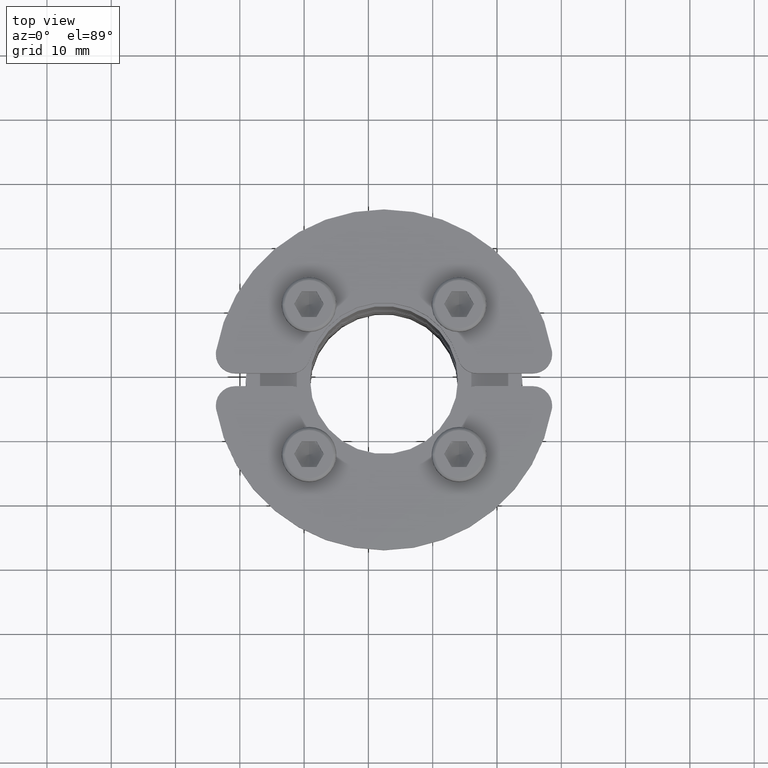
[diagram: clean part render]
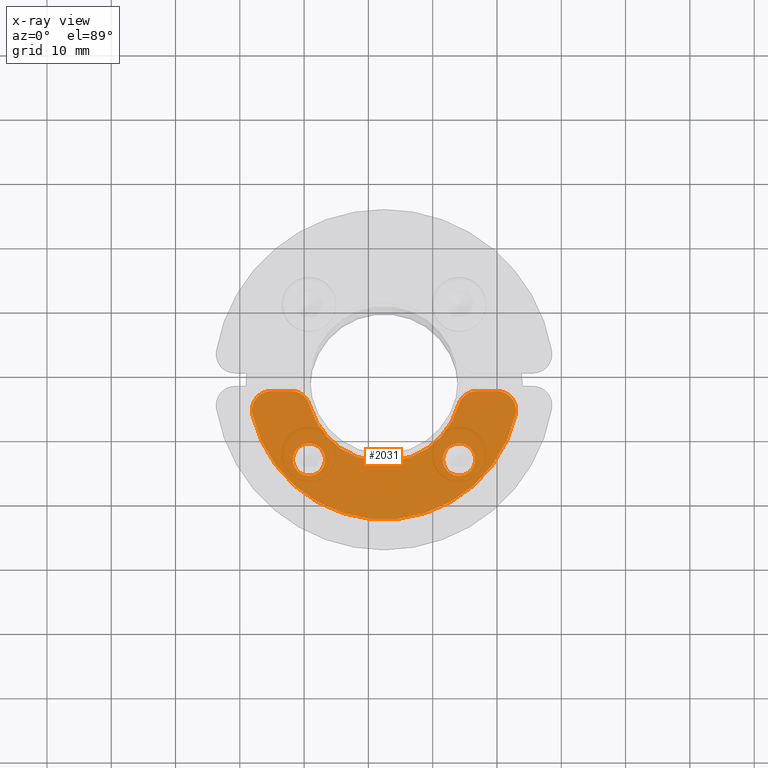
[diagram: x-ray — body ghosted, one internal face saturated and labeled with its STEP entity id]
A machine part, top view, then the same camera in x-ray: the body is ghosted and one INTERNAL B-rep face — a face not visible from any outside direction — is saturated and labeled: STEP entity #2031.
In plain terms, the highlighted planar face has unit normal (0, 0, 1).
Its self-contained STEP definition (entity closure, byte-faithful):
#1555=CARTESIAN_POINT('',(20.549928774784263,-7.0,1.250000000000000));
#1556=VERTEX_POINT('',#1555);
#1572=CARTESIAN_POINT('',(20.474916903914931,-6.333333333333329,1.250000000000000));
#1573=VERTEX_POINT('',#1572);
#1580=CARTESIAN_POINT('',(17.549928774784263,-7.0,1.250000000000000));
#1581=DIRECTION('',(0.0,0.0,-1.0));
#1582=DIRECTION('',(1.0,0.0,0.0));
#1583=AXIS2_PLACEMENT_3D('',#1580,#1581,#1582);
#1584=CIRCLE('',#1583,3.0);
#1585=EDGE_CURVE('',#1573,#1556,#1584,.T.);
#1595=CARTESIAN_POINT('',(-20.549928774784235,-6.999999999999993,1.250000000000000));
#1596=VERTEX_POINT('',#1595);
#1605=CARTESIAN_POINT('',(-20.474916903914959,-6.333333333333322,1.250000000000000));
#1606=VERTEX_POINT('',#1605);
#1607=CARTESIAN_POINT('',(-17.549928774784235,-6.999999999999993,1.250000000000000));
#1608=DIRECTION('',(0.0,0.0,-1.0));
#1609=DIRECTION('',(1.0,0.0,0.0));
#1610=AXIS2_PLACEMENT_3D('',#1607,#1608,#1609);
#1611=CIRCLE('',#1610,3.0);
#1612=EDGE_CURVE('',#1596,#1606,#1611,.T.);
#1639=CARTESIAN_POINT('',(-9.167261889578031,0.667261889578034,1.250000000000000));
#1640=VERTEX_POINT('',#1639);
#1656=CARTESIAN_POINT('',(-14.167261889578031,0.667261889578034,1.250000000000000));
#1657=VERTEX_POINT('',#1656);
#1664=CARTESIAN_POINT('',(-11.667261889578031,0.667261889578034,1.250000000000000));
#1665=DIRECTION('',(0.0,0.0,-1.0));
#1666=DIRECTION('',(1.0,0.0,0.0));
#1667=AXIS2_PLACEMENT_3D('',#1664,#1665,#1666);
#1668=CIRCLE('',#1667,2.500000000000000);
#1669=EDGE_CURVE('',#1640,#1657,#1668,.T.);
#1681=CARTESIAN_POINT('',(14.167261889578045,0.667261889578039,1.250000000000000));
#1682=VERTEX_POINT('',#1681);
#1698=CARTESIAN_POINT('',(9.167261889578045,0.667261889578038,1.250000000000000));
#1699=VERTEX_POINT('',#1698);
#1706=CARTESIAN_POINT('',(11.667261889578045,0.667261889578039,1.250000000000000));
#1707=DIRECTION('',(0.0,0.0,-1.0));
#1708=DIRECTION('',(1.0,0.0,0.0));
#1709=AXIS2_PLACEMENT_3D('',#1706,#1707,#1708);
#1710=CIRCLE('',#1709,2.500000000000000);
#1711=EDGE_CURVE('',#1682,#1699,#1710,.T.);
#1722=CARTESIAN_POINT('',(11.667261889578045,0.667261889578039,1.250000000000000));
#1723=DIRECTION('',(0.0,0.0,-1.0));
#1724=DIRECTION('',(1.0,0.0,0.0));
#1725=AXIS2_PLACEMENT_3D('',#1722,#1723,#1724);
#1726=CIRCLE('',#1725,2.500000000000000);
#1727=EDGE_CURVE('',#1699,#1682,#1726,.T.);
#1746=CARTESIAN_POINT('',(-11.667261889578031,0.667261889578034,1.250000000000000));
#1747=DIRECTION('',(0.0,0.0,-1.0));
#1748=DIRECTION('',(1.0,0.0,0.0));
#1749=AXIS2_PLACEMENT_3D('',#1746,#1747,#1748);
#1750=CIRCLE('',#1749,2.500000000000000);
#1751=EDGE_CURVE('',#1657,#1640,#1750,.T.);
#1769=CARTESIAN_POINT('',(14.456832294800961,-9.999999999999993,1.250000000000000));
#1770=VERTEX_POINT('',#1769);
#1771=CARTESIAN_POINT('',(11.565465835840769,-7.799999999999997,1.250000000000000));
#1772=VERTEX_POINT('',#1771);
#1773=CARTESIAN_POINT('',(14.456832294800961,-7.000000000000007,1.250000000000000));
#1774=DIRECTION('',(0.0,0.0,-1.0));
#1775=DIRECTION('',(1.0,0.0,0.0));
#1776=AXIS2_PLACEMENT_3D('',#1773,#1774,#1775);
#1777=CIRCLE('',#1776,3.0);
#1778=EDGE_CURVE('',#1770,#1772,#1777,.T.);
#1811=CARTESIAN_POINT('',(-11.565465835840769,-7.799999999999990,1.250000000000000));
#1812=VERTEX_POINT('',#1811);
#1813=CARTESIAN_POINT('',(0.0,-10.999999999999964,1.250000000000000));
#1814=DIRECTION('',(0.0,0.0,1.0));
#1815=DIRECTION('',(1.0,0.0,0.0));
#1816=AXIS2_PLACEMENT_3D('',#1813,#1814,#1815);
#1817=CIRCLE('',#1816,12.0);
#1818=EDGE_CURVE('',#1772,#1812,#1817,.T.);
#1844=CARTESIAN_POINT('',(-14.456832294800961,-9.999999999999993,1.250000000000000));
#1845=VERTEX_POINT('',#1844);
#1846=CARTESIAN_POINT('',(-14.456832294800961,-7.0,1.250000000000000));
#1847=DIRECTION('',(0.0,0.0,-1.0));
#1848=DIRECTION('',(1.0,0.0,0.0));
#1849=AXIS2_PLACEMENT_3D('',#1846,#1847,#1848);
#1850=CIRCLE('',#1849,3.0);
#1851=EDGE_CURVE('',#1812,#1845,#1850,.T.);
#1877=CARTESIAN_POINT('',(-17.549928774784235,-10.000000000000007,1.250000000000000));
#1878=VERTEX_POINT('',#1877);
#1879=CARTESIAN_POINT('',(-14.456832294800961,-9.999999999999993,1.250000000000000));
#1880=DIRECTION('',(-1.0,0.0,0.0));
#1881=VECTOR('',#1880,3.093096479983274);
#1882=LINE('',#1879,#1881);
#1883=EDGE_CURVE('',#1845,#1878,#1882,.T.);
#1917=CARTESIAN_POINT('',(-17.549928774784235,-6.999999999999993,1.250000000000000));
#1918=DIRECTION('',(0.0,0.0,-1.0));
#1919=DIRECTION('',(1.0,0.0,0.0));
#1920=AXIS2_PLACEMENT_3D('',#1917,#1918,#1919);
#1921=CIRCLE('',#1920,3.0);
#1922=EDGE_CURVE('',#1878,#1596,#1921,.T.);
#1932=CARTESIAN_POINT('',(0.0,-10.999999999999993,1.250000000000000));
#1933=DIRECTION('',(0.0,0.0,-1.0));
#1934=DIRECTION('',(1.0,0.0,0.0));
#1935=AXIS2_PLACEMENT_3D('',#1932,#1933,#1934);
#1936=CIRCLE('',#1935,21.0);
#1937=EDGE_CURVE('',#1606,#1573,#1936,.T.);
#1957=CARTESIAN_POINT('',(17.549928774784263,-10.0,1.250000000000000));
#1958=VERTEX_POINT('',#1957);
#1959=CARTESIAN_POINT('',(17.549928774784263,-7.0,1.250000000000000));
#1960=DIRECTION('',(0.0,0.0,-1.0));
#1961=DIRECTION('',(1.0,0.0,0.0));
#1962=AXIS2_PLACEMENT_3D('',#1959,#1960,#1961);
#1963=CIRCLE('',#1962,3.0);
#1964=EDGE_CURVE('',#1556,#1958,#1963,.T.);
#1989=CARTESIAN_POINT('',(17.549928774784263,-10.0,1.250000000000000));
#1990=DIRECTION('',(-1.0,0.0,0.0));
#1991=VECTOR('',#1990,3.093096479983302);
#1992=LINE('',#1989,#1991);
#1993=EDGE_CURVE('',#1958,#1770,#1992,.T.);
#2006=CARTESIAN_POINT('',(8.437695E-015,-1.160542278477148,1.250000000000000));
#2007=DIRECTION('',(0.0,0.0,1.0));
#2008=DIRECTION('',(1.0,0.0,0.0));
#2009=AXIS2_PLACEMENT_3D('',#2006,#2007,#2008);
#2010=PLANE('',#2009);
#2011=ORIENTED_EDGE('',*,*,#1778,.F.);
#2012=ORIENTED_EDGE('',*,*,#1993,.F.);
#2013=ORIENTED_EDGE('',*,*,#1964,.F.);
#2014=ORIENTED_EDGE('',*,*,#1585,.F.);
#2015=ORIENTED_EDGE('',*,*,#1937,.F.);
#2016=ORIENTED_EDGE('',*,*,#1612,.F.);
#2017=ORIENTED_EDGE('',*,*,#1922,.F.);
#2018=ORIENTED_EDGE('',*,*,#1883,.F.);
#2019=ORIENTED_EDGE('',*,*,#1851,.F.);
#2020=ORIENTED_EDGE('',*,*,#1818,.F.);
#2021=EDGE_LOOP('',(#2011,#2012,#2013,#2014,#2015,#2016,#2017,#2018,#2019,#2020));
#2022=FACE_OUTER_BOUND('',#2021,.T.);
#2023=ORIENTED_EDGE('',*,*,#1711,.T.);
#2024=ORIENTED_EDGE('',*,*,#1727,.T.);
#2025=EDGE_LOOP('',(#2023,#2024));
#2026=FACE_BOUND('',#2025,.T.);
#2027=ORIENTED_EDGE('',*,*,#1669,.T.);
#2028=ORIENTED_EDGE('',*,*,#1751,.T.);
#2029=EDGE_LOOP('',(#2027,#2028));
#2030=FACE_BOUND('',#2029,.T.);
#2031=ADVANCED_FACE('',(#2022,#2026,#2030),#2010,.T.);